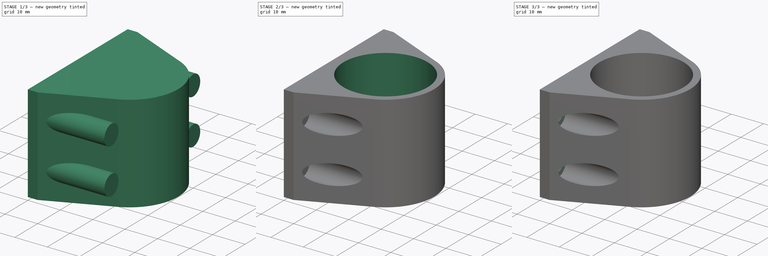
[diagram: build sequence overview — one tinted view per stage of 3, left to right]
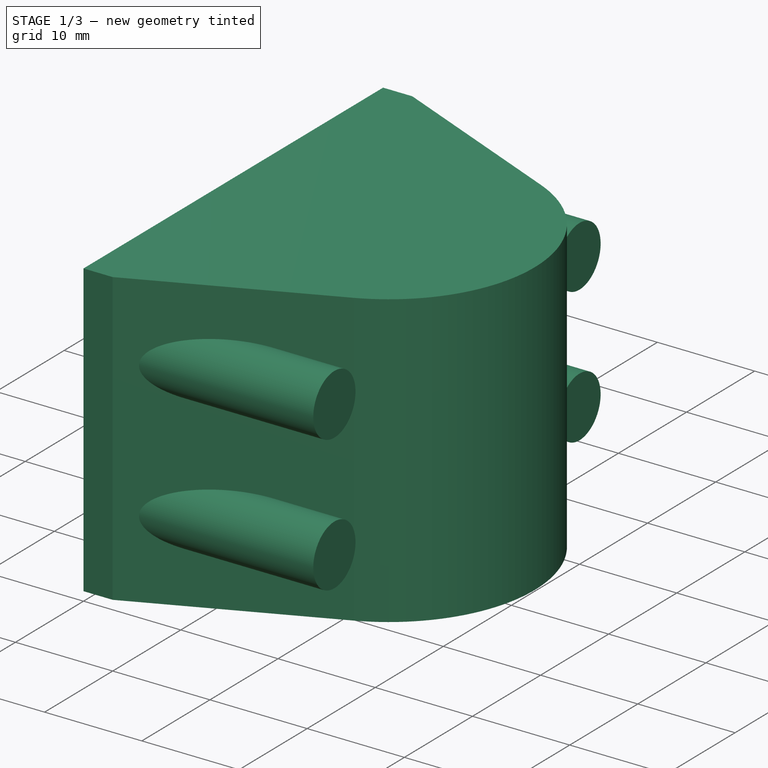
[diagram: stage 1 of 3 — iso view after this stage's code; geometry added in this stage tinted green]
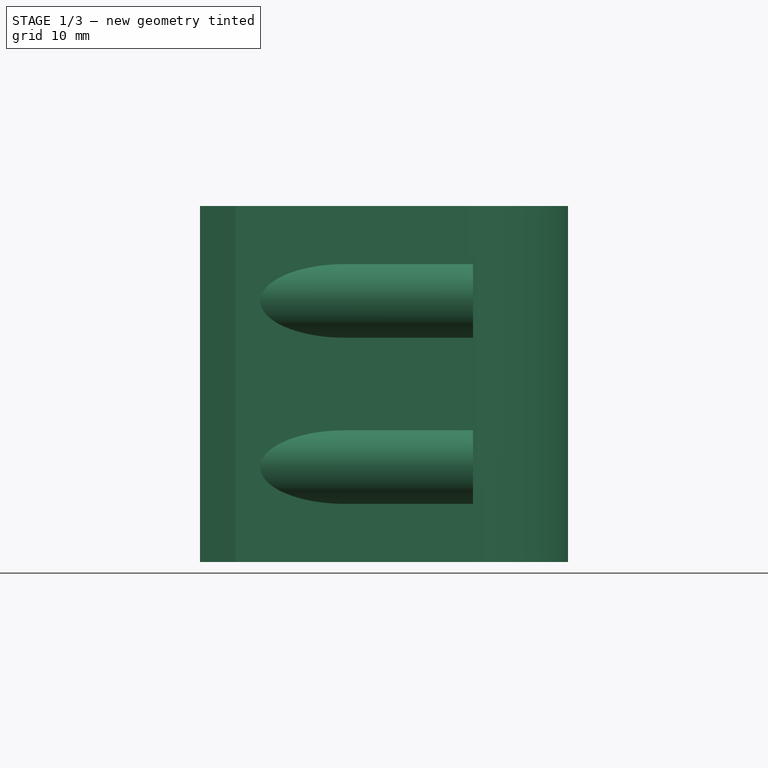
[diagram: stage 1 of 3 — front view after this stage's code; geometry added in this stage tinted green]
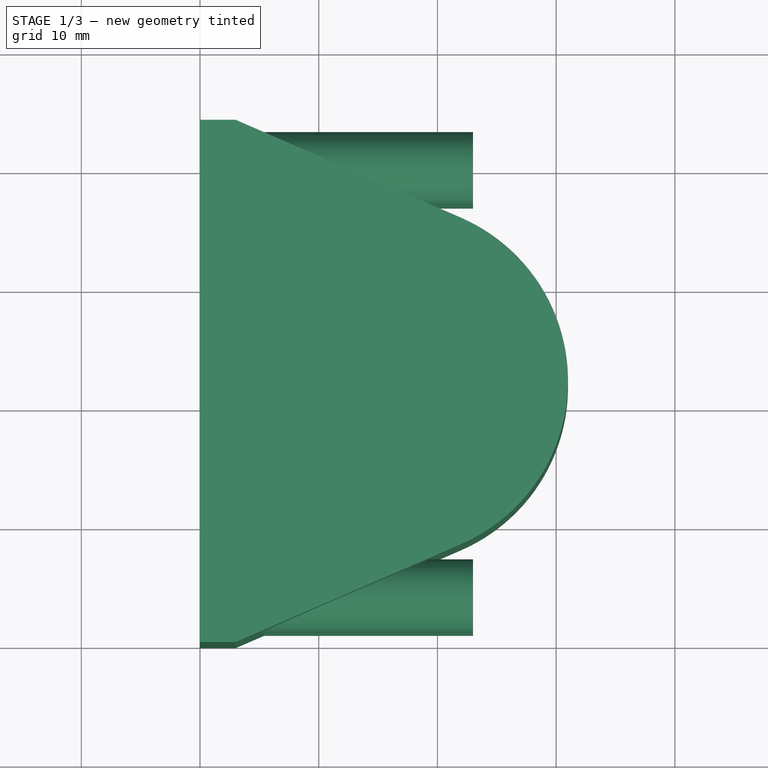
[diagram: stage 1 of 3 — top view after this stage's code; geometry added in this stage tinted green]
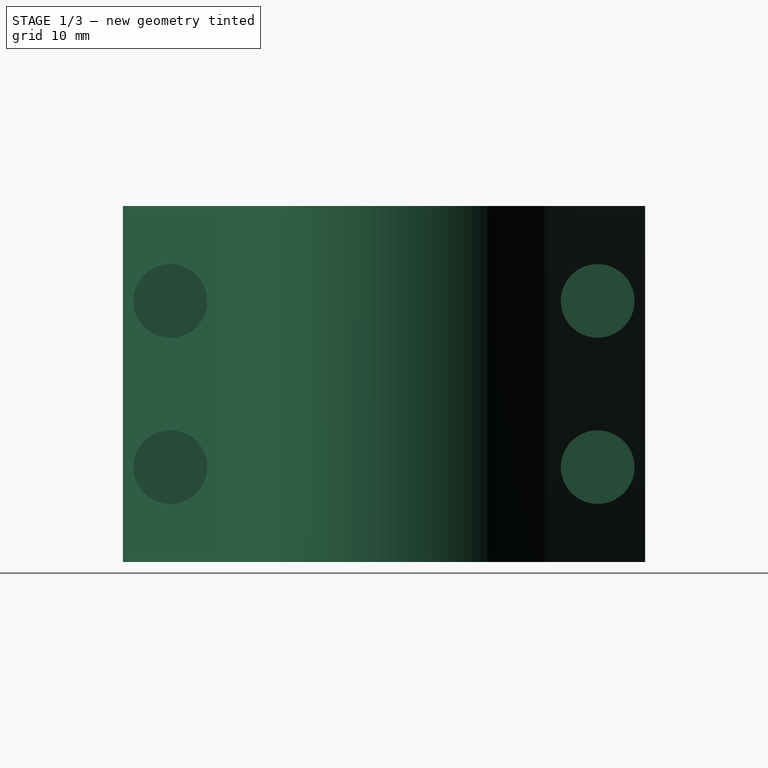
[diagram: stage 1 of 3 — right view after this stage's code; geometry added in this stage tinted green]
FCSTD DOCUMENT  (FreeCAD 0.16R5351 (Git))
Label: MotorMount
License: All rights reserved
LicenseURL: http://en.wikipedia.org/wiki/All_rights_reserved
objects: Sketcher::SketchObject×5, PartDesign::Pocket×3, PartDesign::Pad×2, Part::Cut×1
note: 16 computed .brp shape members not serialized (recipe doc carries the construction recipe); baked Part::Feature solids carry a one-line shape summary decoded from their .brp

FEATURE [Sketcher::SketchObject] Sketch
  sketch-geometry (7):
    g0: LineSegment StartX=0 StartY=0 StartZ=0 EndX=0 EndY=44 EndZ=0
    g1: LineSegment StartX=0 StartY=44 StartZ=0 EndX=3 EndY=44 EndZ=0
    g2: LineSegment StartX=3 StartY=44 StartZ=0 EndX=21.9756 EndY=35.7583 EndZ=0
    g3: LineSegment StartX=21.9756 StartY=8.24165 StartZ=0 EndX=3 EndY=0 EndZ=0
    g4: LineSegment StartX=3 StartY=0 StartZ=0 EndX=0 EndY=0 EndZ=0
    g5: LineSegment [constr] StartX=3 StartY=44 StartZ=0 EndX=3 EndY=0 EndZ=0
    g6: ArcOfCircle CenterX=16 CenterY=22 CenterZ=0 NormalX=0 NormalY=0 NormalZ=1 Radius=15 StartAngle=5.12213 EndAngle=7.44424
  constraints (20):
    c: Coincident(g-1,g0)
    c: Coincident(g0,g1)
    c: Horizontal(g1)
    c: Coincident(g1,g2)
    c: Coincident(g3,g4)
    c: Coincident(g4,g0)
    c: Horizontal(g4)
    c: Vertical(g0)
    c: Coincident(g5,g1)
    c: Coincident(g5,g3)
    c: Vertical(g5)
    c: Coincident(g6,g2)
    c: Tangent(g2,g6)
    c: Tangent(g6,g3)
    c: Equal(g3,g2)
    c: Coincident(g6,g3)
    c: Radius(g6) = 15
    c: DistanceY(g0) = 44
    c: DistanceX(g6,g3) = -13
    c: DistanceX(g4) = -3
FEATURE [PartDesign::Pad] Pad
  Length = 30
  Length2 = 100
  Sketch = -> Sketch
  Type = 0
FEATURE [Sketcher::SketchObject] Sketch002
  Placement = pos=(3,0,0) rot=(0.57735,0.57735,0.57735;2.0944rad)
  sketch-geometry (8):
    g0: Circle CenterX=4 CenterY=22 CenterZ=0 NormalX=0 NormalY=0 NormalZ=1 Radius=3.1
    g1: Circle CenterX=40 CenterY=22 CenterZ=0 NormalX=0 NormalY=0 NormalZ=1 Radius=3.1
    g2: Circle CenterX=4 CenterY=8 CenterZ=0 NormalX=0 NormalY=0 NormalZ=1 Radius=3.1
    g3: Circle CenterX=40 CenterY=8 CenterZ=0 NormalX=0 NormalY=0 NormalZ=1 Radius=3.1
    g4: LineSegment [constr] StartX=4 StartY=22 StartZ=0 EndX=40 EndY=22 EndZ=0
    g5: LineSegment [constr] StartX=40 StartY=22 StartZ=0 EndX=40 EndY=8 EndZ=0
    g6: LineSegment [constr] StartX=40 StartY=8 StartZ=0 EndX=4 EndY=8 EndZ=0
    g7: LineSegment [constr] StartX=4 StartY=8 StartZ=0 EndX=4 EndY=22 EndZ=0
  constraints (20):
    c: Coincident(g4,g0)
    c: Coincident(g4,g1)
    c: Coincident(g4,g5)
    c: Coincident(g5,g3)
    c: Coincident(g5,g6)
    c: Coincident(g6,g2)
    c: Coincident(g6,g7)
    c: Coincident(g7,g4)
    c: Vertical(g7)
    c: Vertical(g5)
    c: Horizontal(g4)
    c: Horizontal(g6)
    c: Equal(g0,g1)
    c: Equal(g1,g3)
    c: Equal(g3,g2)
    c: Radius(g0) = 3.1
    c: DistanceY(g7) = 14
    c: DistanceX(g4) = 36
    c: DistanceX(g2) = 4
    c: DistanceY(g2) = 8
FEATURE [PartDesign::Pad] Pad001
  Length = 20
  Length2 = 100
  Placement = pos=(3,0,0) rot=(0.57735,0.57735,0.57735;2.0944rad)
  Sketch = -> Sketch002
  Type = 0
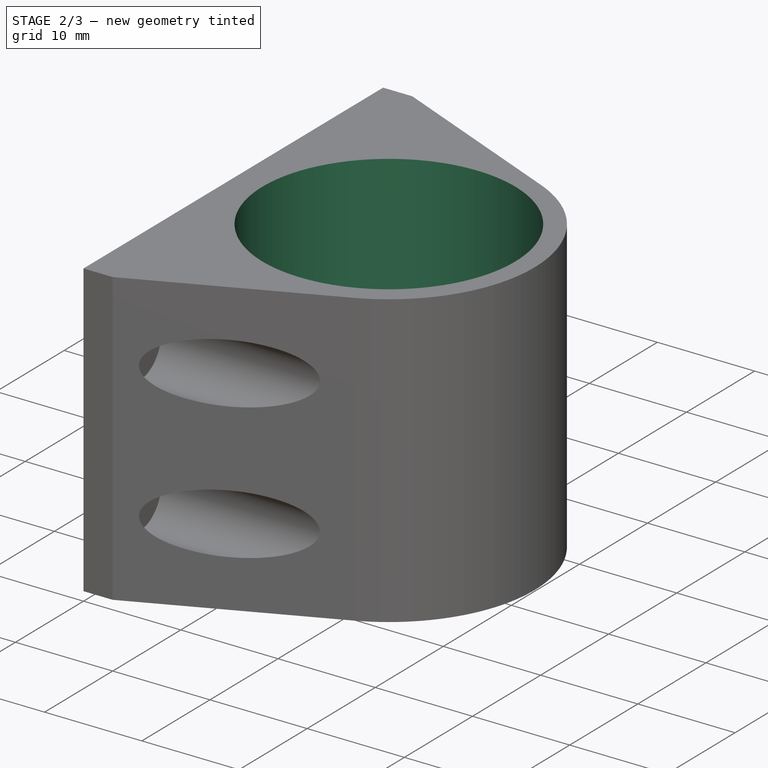
[diagram: stage 2 of 3 — iso view after this stage's code; geometry added in this stage tinted green]
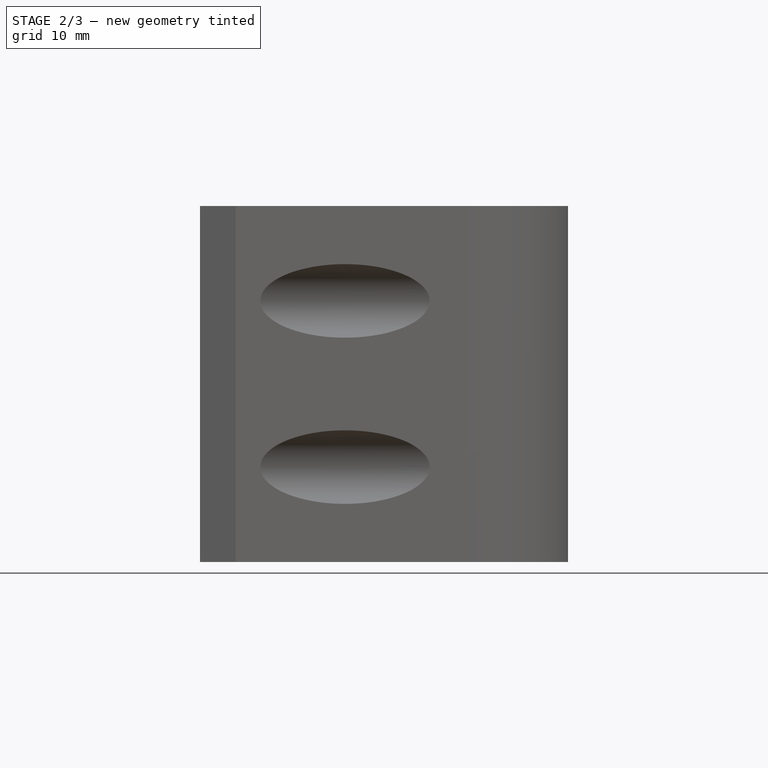
[diagram: stage 2 of 3 — front view after this stage's code; geometry added in this stage tinted green]
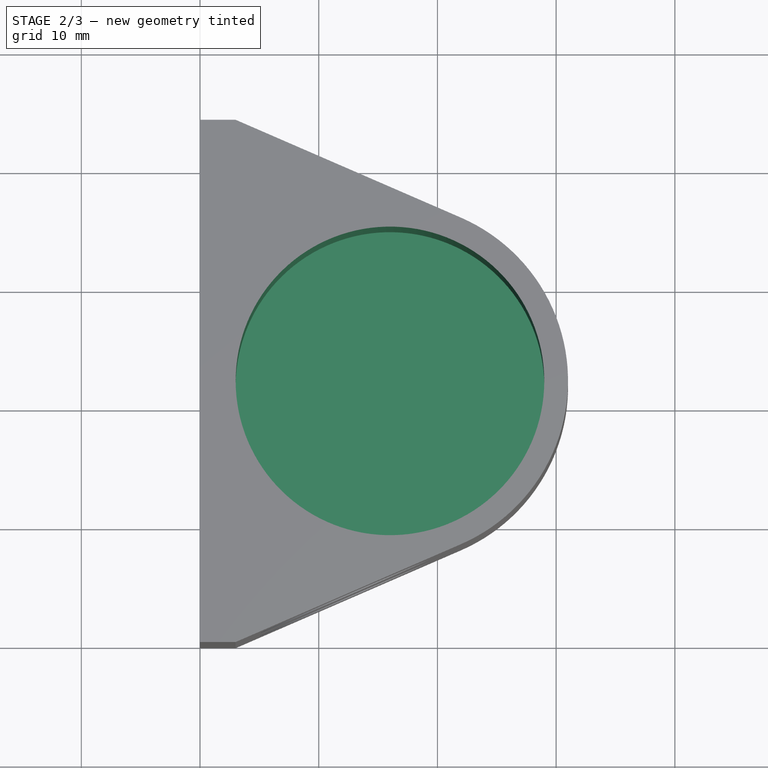
[diagram: stage 2 of 3 — top view after this stage's code; geometry added in this stage tinted green]
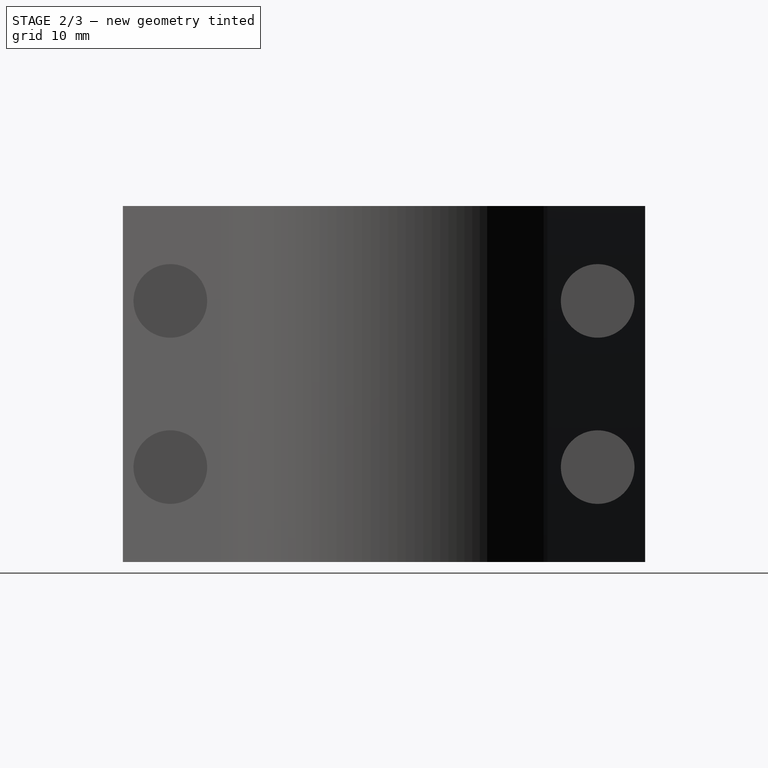
[diagram: stage 2 of 3 — right view after this stage's code; geometry added in this stage tinted green]
FEATURE [Sketcher::SketchObject] Sketch001
  Placement = pos=(0,0,30) rot=(0,0,1;0rad)
  Support = -> Pad [Face8]
  sketch-geometry (1):
    g0: Circle CenterX=16 CenterY=22 CenterZ=0 NormalX=0 NormalY=0 NormalZ=1 Radius=13
  constraints (3):
    c: Radius(g0) = 13
    c: DistanceX(g0) = 16
    c: DistanceY(g0) = 22
FEATURE [PartDesign::Pocket] Pocket
  Length = 27
  Sketch = -> Sketch001
  Type = 0
FEATURE [Part::Cut] Cut
  Base = -> Pocket
  Tool = -> Pad001
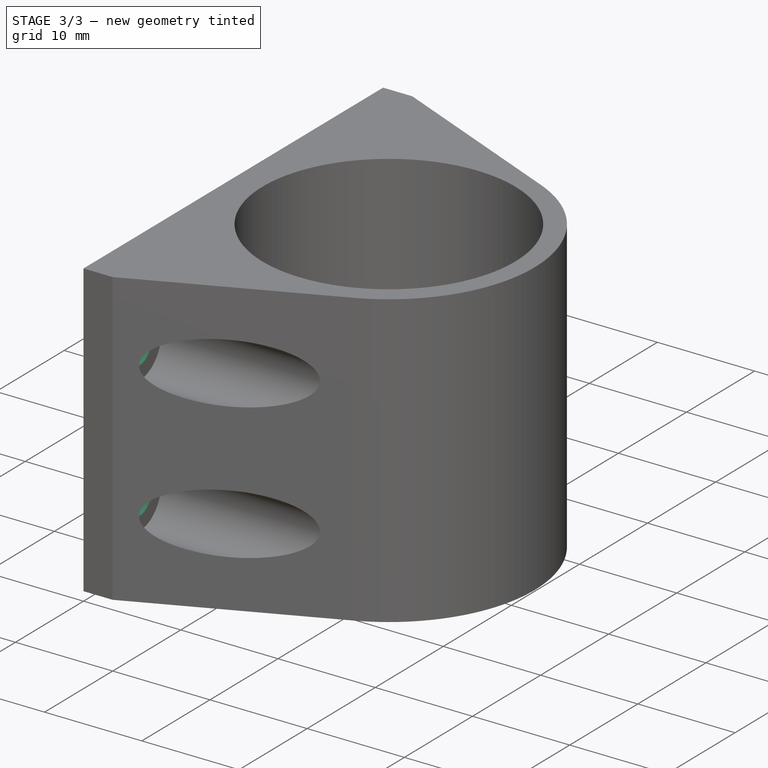
[diagram: stage 3 of 3 — iso view after this stage's code; geometry added in this stage tinted green]
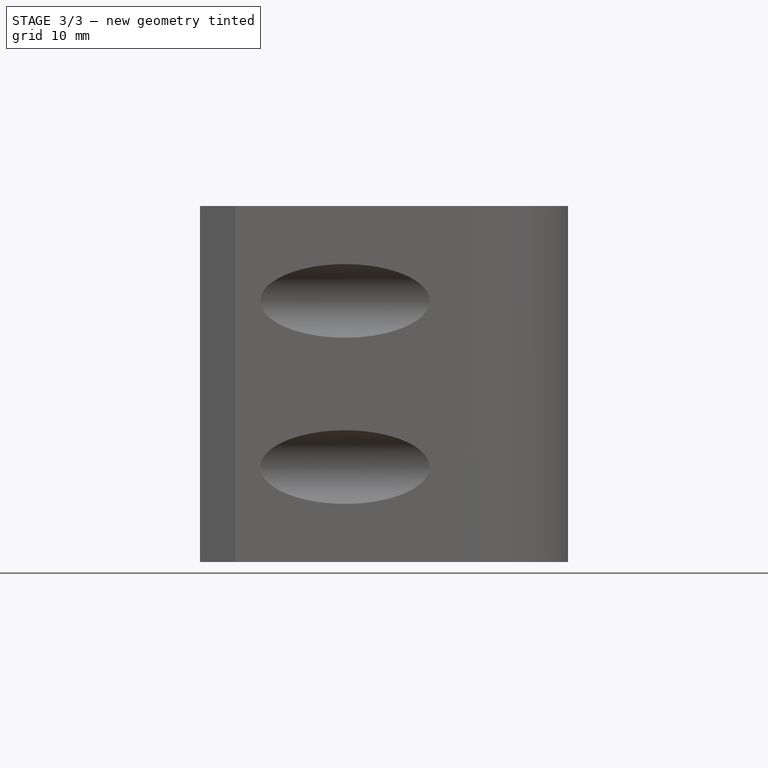
[diagram: stage 3 of 3 — front view after this stage's code; geometry added in this stage tinted green]
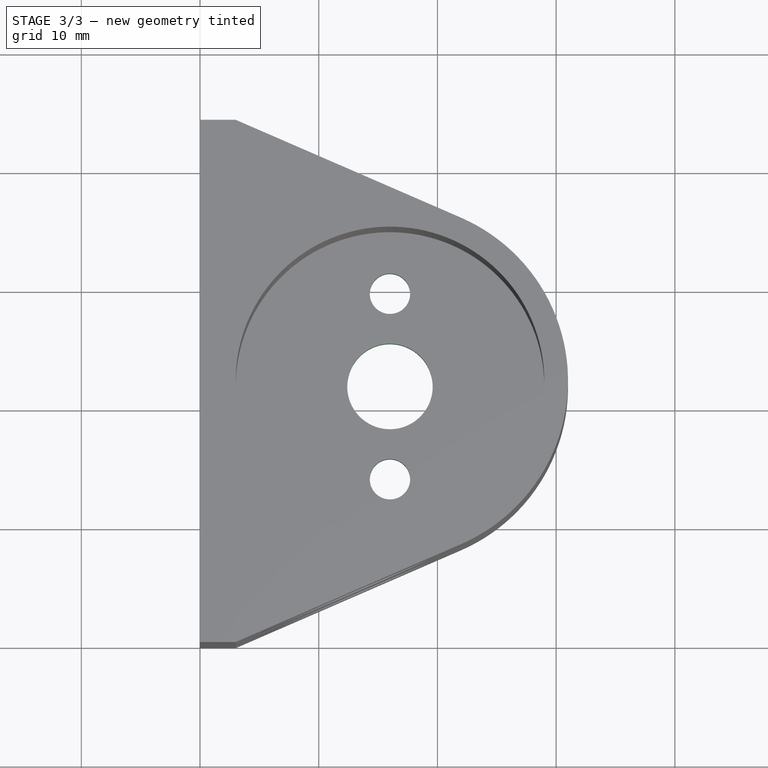
[diagram: stage 3 of 3 — top view after this stage's code; geometry added in this stage tinted green]
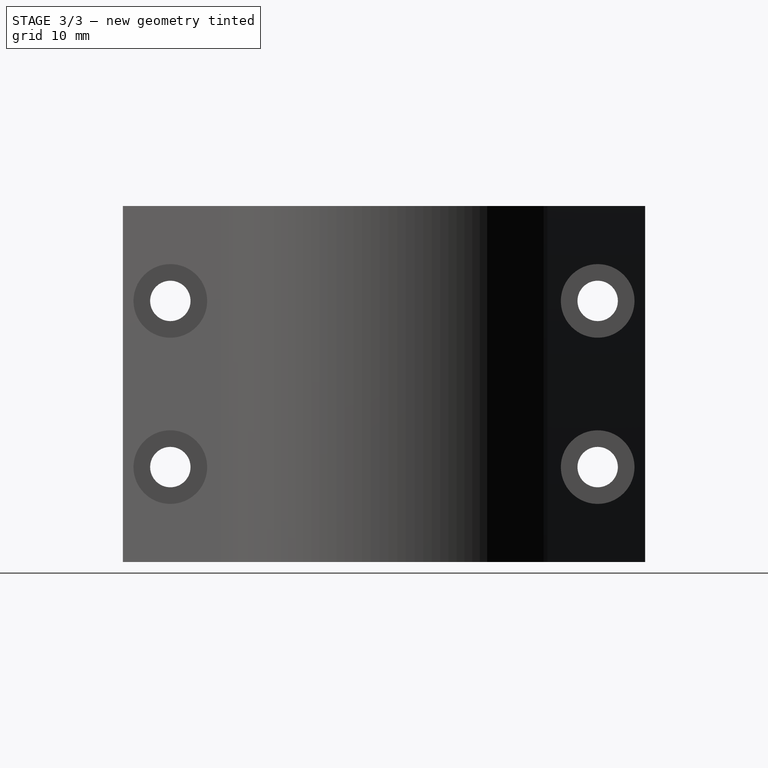
[diagram: stage 3 of 3 — right view after this stage's code; geometry added in this stage tinted green]
FEATURE [Sketcher::SketchObject] Sketch003
  Placement = pos=(3,0,0) rot=(0.57735,0.57735,0.57735;2.0944rad)
  Support = -> Cut [Face12]
  sketch-geometry (8):
    g0: Circle CenterX=4 CenterY=22 CenterZ=0 NormalX=0 NormalY=0 NormalZ=1 Radius=1.7
    g1: Circle CenterX=40 CenterY=22 CenterZ=0 NormalX=0 NormalY=0 NormalZ=1 Radius=1.7
    g2: Circle CenterX=4 CenterY=8 CenterZ=0 NormalX=0 NormalY=0 NormalZ=1 Radius=1.7
    g3: Circle CenterX=40 CenterY=8 CenterZ=0 NormalX=0 NormalY=0 NormalZ=1 Radius=1.7
    g4: LineSegment [constr] StartX=4 StartY=22 StartZ=0 EndX=40 EndY=22 EndZ=0
    g5: LineSegment [constr] StartX=40 StartY=22 StartZ=0 EndX=40 EndY=8 EndZ=0
    g6: LineSegment [constr] StartX=40 StartY=8 StartZ=0 EndX=4 EndY=8 EndZ=0
    g7: LineSegment [constr] StartX=4 StartY=8 StartZ=0 EndX=4 EndY=22 EndZ=0
  constraints (20):
    c: Coincident(g4,g0)
    c: Coincident(g4,g1)
    c: Coincident(g4,g5)
    c: Coincident(g5,g3)
    c: Coincident(g5,g6)
    c: Coincident(g6,g2)
    c: Coincident(g6,g7)
    c: Coincident(g7,g4)
    c: Vertical(g7)
    c: Vertical(g5)
    c: Horizontal(g4)
    c: Horizontal(g6)
    c: Equal(g0,g1)
    c: Equal(g1,g3)
    c: Equal(g3,g2)
    c: Radius(g0) = 1.7
    c: DistanceY(g7) = 14
    c: DistanceX(g4) = 36
    c: DistanceX(g2) = 4
    c: DistanceY(g2) = 8
FEATURE [PartDesign::Pocket] Pocket001
  Length = 3
  Sketch = -> Sketch003
  Type = 0
FEATURE [Sketcher::SketchObject] Sketch004
  Placement = pos=(0,0,3) rot=(0,0,1;0rad)
  Support = -> Pocket001 [Face20]
  sketch-geometry (7):
    g0: Circle CenterX=16 CenterY=22 CenterZ=0 NormalX=0 NormalY=0 NormalZ=1 Radius=3.6
    g1: Circle CenterX=16 CenterY=29.8136 CenterZ=0 NormalX=0 NormalY=0 NormalZ=1 Radius=1.7
    g2: Circle CenterX=16 CenterY=14.1864 CenterZ=0 NormalX=0 NormalY=0 NormalZ=1 Radius=1.7
    g3: LineSegment [constr] StartX=16 StartY=44 StartZ=0 EndX=16 EndY=29.8136 EndZ=0
    g4: LineSegment [constr] StartX=16 StartY=29.8136 StartZ=0 EndX=16 EndY=22 EndZ=0
    g5: LineSegment [constr] StartX=16 StartY=22 StartZ=0 EndX=16 EndY=14.1864 EndZ=0
    g6: LineSegment [constr] StartX=16 StartY=14.1864 StartZ=0 EndX=16 EndY=0 EndZ=0
  constraints (18):
    c: Coincident(g3,g1)
    c: Vertical(g3)
    c: Coincident(g3,g4)
    c: Coincident(g4,g0)
    c: Vertical(g4)
    c: Coincident(g4,g5)
    c: Coincident(g5,g2)
    c: Vertical(g5)
    c: Coincident(g5,g6)
    c: PointOnObject(g6,g-1)
    c: Vertical(g6)
    c: Equal(g4,g5)
    c: Equal(g3,g6)
    c: Equal(g1,g2)
    c: Radius(g0) = 3.6
    c: Radius(g1) = 1.7
    c: DistanceY(g3,g6) = -44
    c: DistanceX(g6) = 16
FEATURE [PartDesign::Pocket] Pocket002
  Length = 3
  Sketch = -> Sketch004
  Type = 0
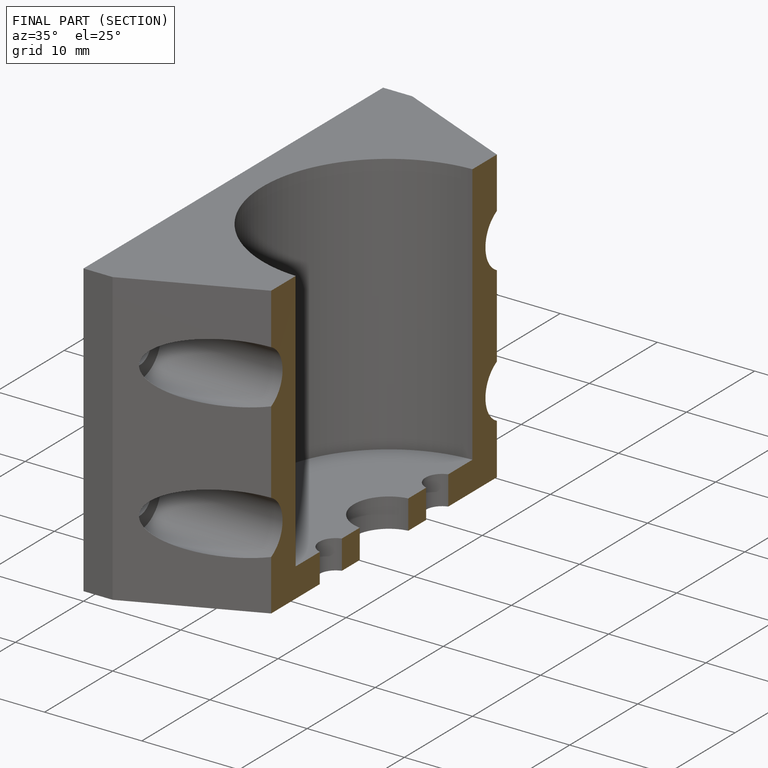
[diagram: finished part — half-section view (interior)]
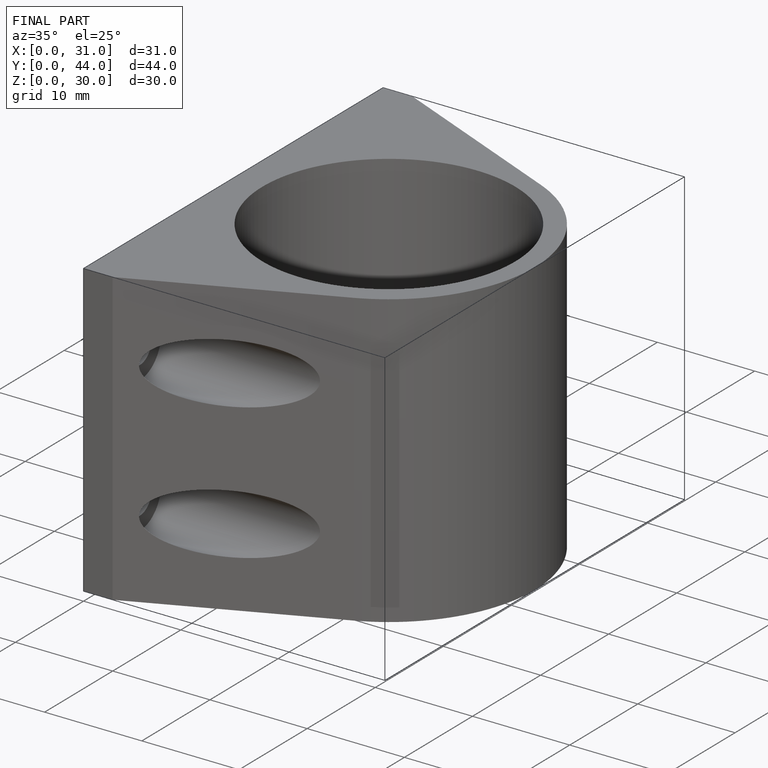
[diagram: finished part — iso view with bounding-box wireframe]
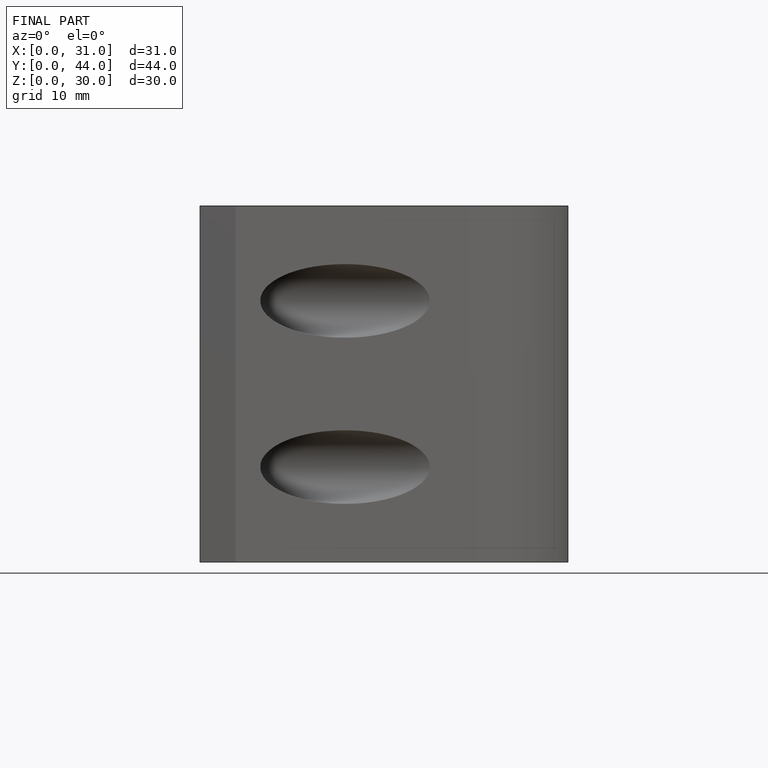
[diagram: finished part — front view with bounding-box wireframe]
